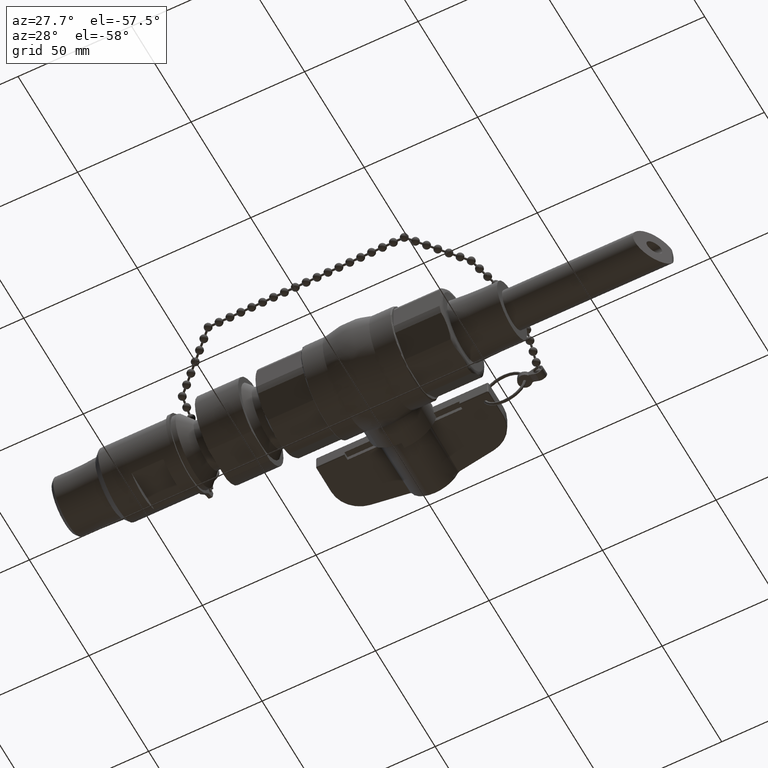
[diagram: clean part render]
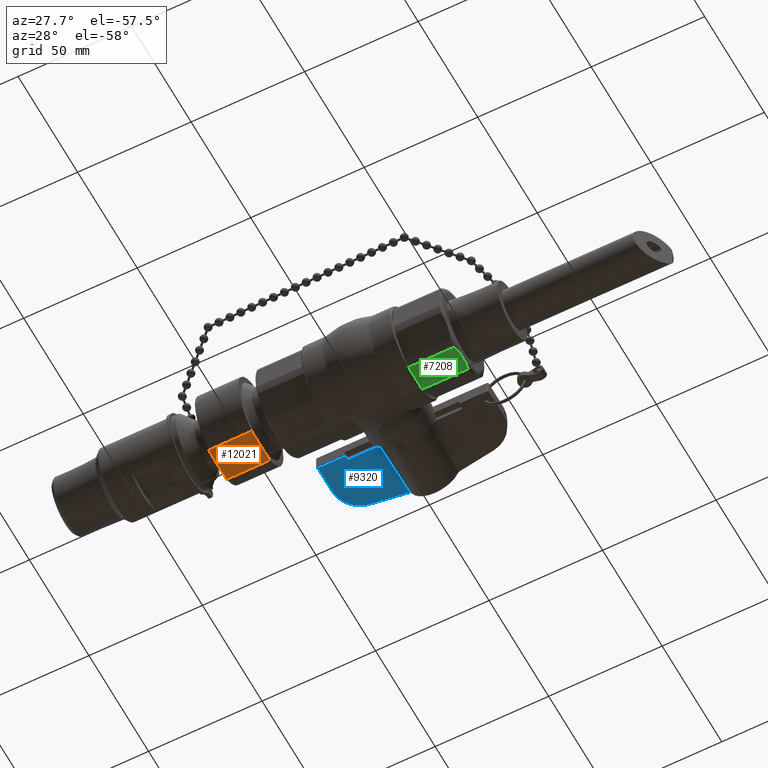
[diagram: same view with three faces highlighted in distinct colors, each labeled with its STEP entity id]
A machine part, auxiliary view with three faces highlighted in distinct colors.
Their STEP definitions:

[orange] entity #12021 — the highlighted planar face has unit normal (0, 0, 1).
#11856=CARTESIAN_POINT('',(-1.891999999999999,0.299739470207045,-0.687500000000001));
#11857=VERTEX_POINT('',#11856);
#11858=CARTESIAN_POINT('',(-2.642000000000000,0.299739470207045,-0.687500000000001));
#11859=VERTEX_POINT('',#11858);
#11860=CARTESIAN_POINT('',(-1.891999999999999,0.299739470207045,-0.687500000000001));
#11861=DIRECTION('',(-1.0,0.0,0.0));
#11862=VECTOR('',#11861,0.750000000000000);
#11863=LINE('',#11860,#11862);
#11864=EDGE_CURVE('',#11857,#11859,#11863,.T.);
#11898=CARTESIAN_POINT('',(-1.891999999999999,-0.299739470207044,-0.687500000000001));
#11899=VERTEX_POINT('',#11898);
#11900=CARTESIAN_POINT('',(-1.891999999999999,-0.299739470207044,-0.687500000000001));
#11901=DIRECTION('',(0.0,1.0,0.0));
#11902=VECTOR('',#11901,0.599478940414089);
#11903=LINE('',#11900,#11902);
#11904=EDGE_CURVE('',#11899,#11857,#11903,.T.);
#11961=CARTESIAN_POINT('',(-2.642000000000000,-0.299739470207044,-0.687500000000001));
#11962=VERTEX_POINT('',#11961);
#11963=CARTESIAN_POINT('',(-2.642000000000000,-0.299739470207044,-0.687500000000001));
#11964=DIRECTION('',(1.0,0.0,0.0));
#11965=VECTOR('',#11964,0.750000000000000);
#11966=LINE('',#11963,#11965);
#11967=EDGE_CURVE('',#11962,#11899,#11966,.T.);
#12005=CARTESIAN_POINT('',(-2.642000000000000,-0.619491177712298,-0.687500000000001));
#12006=DIRECTION('',(0.0,0.0,1.0));
#12007=DIRECTION('',(1.0,0.0,0.0));
#12008=AXIS2_PLACEMENT_3D('',#12005,#12006,#12007);
#12009=PLANE('',#12008);
#12010=ORIENTED_EDGE('',*,*,#11904,.F.);
#12011=ORIENTED_EDGE('',*,*,#11967,.F.);
#12012=CARTESIAN_POINT('',(-2.642000000000000,0.299739470207044,-0.687500000000001));
#12013=DIRECTION('',(0.0,-1.0,0.0));
#12014=VECTOR('',#12013,0.599478940414089);
#12015=LINE('',#12012,#12014);
#12016=EDGE_CURVE('',#11859,#11962,#12015,.T.);
#12017=ORIENTED_EDGE('',*,*,#12016,.F.);
#12018=ORIENTED_EDGE('',*,*,#11864,.F.);
#12019=EDGE_LOOP('',(#12010,#12011,#12017,#12018));
#12020=FACE_OUTER_BOUND('',#12019,.T.);
#12021=ADVANCED_FACE('',(#12020),#12009,.F.);

[blue] entity #9320 — the highlighted face is a freeform B-spline surface patch.
#9120=CARTESIAN_POINT('',(-0.995856689942063,1.158727388252525,-0.137500000000000));
#9121=VERTEX_POINT('',#9120);
#9128=CARTESIAN_POINT('',(-0.444255282972009,1.158727388252494,-0.137500000000000));
#9129=VERTEX_POINT('',#9128);
#9130=CARTESIAN_POINT('',(-0.444255282972009,1.158727388252525,-0.137500000000000));
#9131=DIRECTION('',(-1.0,0.0,0.0));
#9132=VECTOR('',#9131,0.551601406970055);
#9133=LINE('',#9130,#9132);
#9134=EDGE_CURVE('',#9129,#9121,#9133,.T.);
#9264=CARTESIAN_POINT('',(-1.470856689942063,2.128875274251386,-0.137500000000000));
#9265=CARTESIAN_POINT('',(-0.427113051793607,2.128875274251386,-0.137500000000000));
#9266=CARTESIAN_POINT('',(-1.470856689942063,1.083727388252525,-0.137500000000000));
#9267=CARTESIAN_POINT('',(-0.427113051793607,1.083727388252525,-0.137500000000000));
#9268=B_SPLINE_SURFACE_WITH_KNOTS('',1,1,((#9264,#9266),(#9265,#9267)),.UNSPECIFIED.,.F.,.F.,.U.,(2,2),(2,2),(0.0,1.043743638148456),(0.0,1.045147885998862),.UNSPECIFIED.);
#9269=CARTESIAN_POINT('',(-0.427152624647678,2.128835701397159,-0.137500000000000));
#9270=VERTEX_POINT('',#9269);
#9271=CARTESIAN_POINT('',(-0.444255282972008,1.158727388252494,-0.137500000000000));
#9272=CARTESIAN_POINT('',(-0.438567796718422,1.482097062018826,-0.137500000000000));
#9273=CARTESIAN_POINT('',(-0.432867447095459,1.805466509612799,-0.137500000000000));
#9274=CARTESIAN_POINT('',(-0.427152624647699,2.128835701397295,-0.137500000000000));
#9275=B_SPLINE_CURVE_WITH_KNOTS('',3,(#9271,#9272,#9273,#9274),.UNSPECIFIED.,.F.,.U.,(4,4),(0.364793357275871,2.829251365757756),.UNSPECIFIED.);
#9276=EDGE_CURVE('',#9129,#9270,#9275,.T.);
#9277=ORIENTED_EDGE('',*,*,#9276,.F.);
#9278=ORIENTED_EDGE('',*,*,#9134,.T.);
#9279=CARTESIAN_POINT('',(-0.995856689942063,1.083727388252525,-0.137500000000000));
#9280=VERTEX_POINT('',#9279);
#9281=CARTESIAN_POINT('',(-0.995856689942063,1.158727388252525,-0.137500000000000));
#9282=DIRECTION('',(0.0,-1.0,0.0));
#9283=VECTOR('',#9282,0.075000000000000);
#9284=LINE('',#9281,#9283);
#9285=EDGE_CURVE('',#9121,#9280,#9284,.T.);
#9286=ORIENTED_EDGE('',*,*,#9285,.T.);
#9287=CARTESIAN_POINT('',(-1.470856689942063,1.083727388252525,-0.137500000000000));
#9288=VERTEX_POINT('',#9287);
#9289=CARTESIAN_POINT('',(-1.470856689942063,1.083727388252525,-0.137500000000000));
#9290=DIRECTION('',(1.0,0.0,0.0));
#9291=VECTOR('',#9290,0.475000000000000);
#9292=LINE('',#9289,#9291);
#9293=EDGE_CURVE('',#9288,#9280,#9292,.T.);
#9294=ORIENTED_EDGE('',*,*,#9293,.F.);
#9295=CARTESIAN_POINT('',(-1.470856689942063,1.564720401550960,-0.137500000000000));
#9296=VERTEX_POINT('',#9295);
#9297=CARTESIAN_POINT('',(-1.470856689942063,1.564720401550960,-0.137500000000000));
#9298=DIRECTION('',(0.0,-1.0,0.0));
#9299=VECTOR('',#9298,0.480993013298435);
#9300=LINE('',#9297,#9299);
#9301=EDGE_CURVE('',#9296,#9288,#9300,.T.);
#9302=ORIENTED_EDGE('',*,*,#9301,.F.);
#9303=CARTESIAN_POINT('',(-1.065235671589503,2.034626303733051,-0.137500000000000));
#9304=VERTEX_POINT('',#9303);
#9305=CARTESIAN_POINT('',(-0.995856689942063,1.564720401550960,-0.137500000000000));
#9306=DIRECTION('',(-1.241948E-016,1.072045E-016,1.0));
#9307=DIRECTION('',(-0.756987785236529,0.653429026752481,-1.640645E-016));
#9308=AXIS2_PLACEMENT_3D('',#9305,#9306,#9307);
#9309=CIRCLE('',#9308,0.475000000000000);
#9310=EDGE_CURVE('',#9304,#9296,#9309,.T.);
#9311=ORIENTED_EDGE('',*,*,#9310,.F.);
#9312=CARTESIAN_POINT('',(-0.427152624647658,2.128835701397024,-0.137500000000000));
#9313=DIRECTION('',(-0.989275583541243,-0.146061013994610,-8.606376E-017));
#9314=VECTOR('',#9313,0.645000298761789);
#9315=LINE('',#9312,#9314);
#9316=EDGE_CURVE('',#9270,#9304,#9315,.T.);
#9317=ORIENTED_EDGE('',*,*,#9316,.F.);
#9318=EDGE_LOOP('',(#9277,#9278,#9286,#9294,#9302,#9311,#9317));
#9319=FACE_OUTER_BOUND('',#9318,.T.);
#9320=ADVANCED_FACE('',(#9319),#9268,.T.);

[green] entity #7208 — the highlighted face is a freeform B-spline surface patch.
#6407=CARTESIAN_POINT('',(1.585112702707064,-0.225161608628114,-0.717500000000000));
#6408=VERTEX_POINT('',#6407);
#6416=CARTESIAN_POINT('',(1.585112702707064,0.225161608628114,-0.717500000000000));
#6417=VERTEX_POINT('',#6416);
#6418=CARTESIAN_POINT('',(1.585112702707064,-0.225161608628114,-0.717500000000000));
#6419=CARTESIAN_POINT('',(1.593438193017208,-0.194850896924235,-0.717500000000000));
#6420=CARTESIAN_POINT('',(1.598495457448399,-0.162194368817727,-0.717500000000000));
#6421=CARTESIAN_POINT('',(1.606212016415179,-0.085193501644084,-0.717500000000000));
#6422=CARTESIAN_POINT('',(1.607564392373896,-0.040601387131935,-0.717500000000000));
#6423=CARTESIAN_POINT('',(1.607564392373896,0.0,-0.717500000000000));
#6424=CARTESIAN_POINT('',(1.607564392373896,0.040601387131935,-0.717500000000000));
#6425=CARTESIAN_POINT('',(1.606212016415179,0.085193501644084,-0.717500000000000));
#6426=CARTESIAN_POINT('',(1.598495457448399,0.162194368817727,-0.717500000000000));
#6427=CARTESIAN_POINT('',(1.593438193017208,0.194850896924236,-0.717500000000000));
#6428=CARTESIAN_POINT('',(1.585112702707064,0.225161608628114,-0.717500000000000));
#6429=B_SPLINE_CURVE_WITH_KNOTS('',3,(#6418,#6419,#6420,#6421,#6422,#6423,#6424,#6425,#6426,#6427,#6428),.UNSPECIFIED.,.F.,.U.,(4,2,3,2,4),(-0.541598222803650,-0.309382569945343,0.0,0.309382569945343,0.541598222803650),.UNSPECIFIED.);
#6430=EDGE_CURVE('',#6408,#6417,#6429,.T.);
#7178=CARTESIAN_POINT('',(0.788000000000000,0.225261602167954,-0.717500000000000));
#7179=CARTESIAN_POINT('',(1.607664385913736,0.225261602167954,-0.717500000000000));
#7180=CARTESIAN_POINT('',(0.788000000000000,-0.225261602167954,-0.717500000000000));
#7181=CARTESIAN_POINT('',(1.607664385913736,-0.225261602167954,-0.717500000000000));
#7182=B_SPLINE_SURFACE_WITH_KNOTS('',1,1,((#7178,#7180),(#7179,#7181)),.UNSPECIFIED.,.F.,.F.,.U.,(2,2),(2,2),(0.0,0.819664385913736),(0.0,0.450523204335909),.UNSPECIFIED.);
#7183=ORIENTED_EDGE('',*,*,#6430,.F.);
#7184=CARTESIAN_POINT('',(0.788000000000000,-0.225161608628114,-0.717500000000000));
#7185=VERTEX_POINT('',#7184);
#7186=CARTESIAN_POINT('',(1.585112702707064,-0.225161608628114,-0.717500000000000));
#7187=DIRECTION('',(-1.0,0.0,0.0));
#7188=VECTOR('',#7187,0.797112702707064);
#7189=LINE('',#7186,#7188);
#7190=EDGE_CURVE('',#6408,#7185,#7189,.T.);
#7191=ORIENTED_EDGE('',*,*,#7190,.T.);
#7192=CARTESIAN_POINT('',(0.788000000000000,0.225161608628114,-0.717500000000000));
#7193=VERTEX_POINT('',#7192);
#7194=CARTESIAN_POINT('',(0.788000000000000,0.225161608628114,-0.717500000000000));
#7195=DIRECTION('',(0.0,-1.0,0.0));
#7196=VECTOR('',#7195,0.450323217256228);
#7197=LINE('',#7194,#7196);
#7198=EDGE_CURVE('',#7193,#7185,#7197,.T.);
#7199=ORIENTED_EDGE('',*,*,#7198,.F.);
#7200=CARTESIAN_POINT('',(0.788000000000000,0.225161608628114,-0.717500000000000));
#7201=DIRECTION('',(1.0,0.0,0.0));
#7202=VECTOR('',#7201,0.797112702707064);
#7203=LINE('',#7200,#7202);
#7204=EDGE_CURVE('',#7193,#6417,#7203,.T.);
#7205=ORIENTED_EDGE('',*,*,#7204,.T.);
#7206=EDGE_LOOP('',(#7183,#7191,#7199,#7205));
#7207=FACE_OUTER_BOUND('',#7206,.T.);
#7208=ADVANCED_FACE('',(#7207),#7182,.T.);